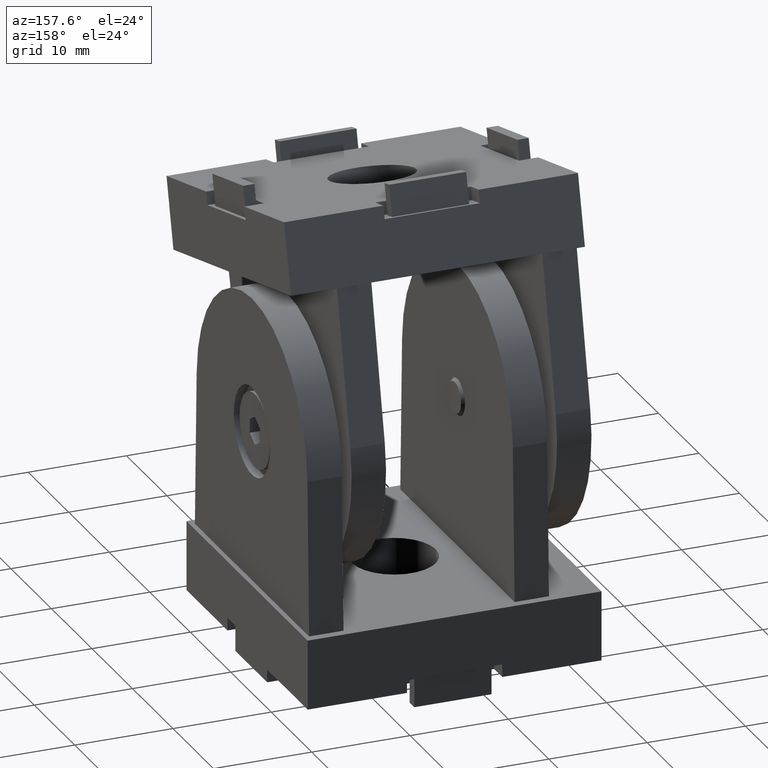
[diagram: clean part render]
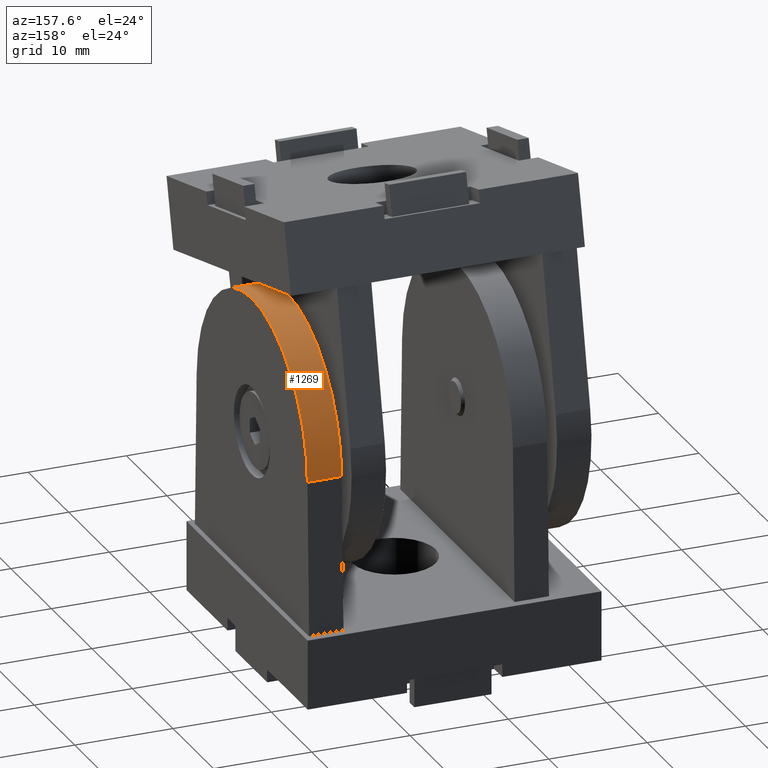
[diagram: same view with one face highlighted and labeled with its STEP entity id]
A machine part, auxiliary view. The second image highlights one B-rep face of the part: STEP entity #1269.
In plain terms, the highlighted cylindrical surface (partial cylindrical patch) has radius 13.675 mm, axis along (-1, -0, 0).
Its self-contained STEP definition (entity closure, byte-faithful):
#165=LINE('',#2010,#305);
#168=LINE('',#2014,#308);
#305=VECTOR('',#1645,3.5);
#308=VECTOR('',#1650,3.5);
#330=CYLINDRICAL_SURFACE('',#1358,13.675);
#412=FACE_OUTER_BOUND('',#499,.T.);
#499=EDGE_LOOP('',(#1062,#1063,#1064,#1065));
#533=CIRCLE('',#1304,13.675);
#534=CIRCLE('',#1306,13.675);
#552=VERTEX_POINT('',#1746);
#553=VERTEX_POINT('',#1747);
#556=VERTEX_POINT('',#1755);
#557=VERTEX_POINT('',#1756);
#667=EDGE_CURVE('',#552,#553,#533,.T.);
#671=EDGE_CURVE('',#556,#557,#534,.T.);
#794=EDGE_CURVE('',#553,#556,#165,.T.);
#797=EDGE_CURVE('',#552,#557,#168,.T.);
#1062=ORIENTED_EDGE('',*,*,#667,.F.);
#1063=ORIENTED_EDGE('',*,*,#797,.T.);
#1064=ORIENTED_EDGE('',*,*,#671,.F.);
#1065=ORIENTED_EDGE('',*,*,#794,.F.);
#1269=ADVANCED_FACE('',(#412),#330,.T.);
#1304=AXIS2_PLACEMENT_3D('',#1748,#1418,#1419);
#1306=AXIS2_PLACEMENT_3D('',#1757,#1425,#1426);
#1358=AXIS2_PLACEMENT_3D('',#2015,#1651,#1652);
#1418=DIRECTION('center_axis',(1.,0.,0.));
#1419=DIRECTION('ref_axis',(0.,0.999624896357522,0.0273873434676064));
#1425=DIRECTION('center_axis',(-1.,0.,0.));
#1426=DIRECTION('ref_axis',(0.,0.999624896357522,0.0273873434676064));
#1645=DIRECTION('',(-1.,0.,0.));
#1650=DIRECTION('',(-1.,0.,0.));
#1651=DIRECTION('center_axis',(-1.,0.,0.));
#1652=DIRECTION('ref_axis',(0.,0.999624896357522,0.0273873434676064));
#1746=CARTESIAN_POINT('',(14.45,13.6698704576891,22.7995219219195));
#1747=CARTESIAN_POINT('',(14.45,-13.6698704576891,22.7995219219195));
#1748=CARTESIAN_POINT('Origin',(14.45,0.,22.425));
#1755=CARTESIAN_POINT('',(10.95,-13.6698704576891,22.7995219219195));
#1756=CARTESIAN_POINT('',(10.95,13.6698704576891,22.7995219219195));
#1757=CARTESIAN_POINT('Origin',(10.95,0.,22.425));
#2010=CARTESIAN_POINT('',(14.45,-13.6698704576891,22.7995219219195));
#2014=CARTESIAN_POINT('',(14.45,13.6698704576891,22.7995219219195));
#2015=CARTESIAN_POINT('Origin',(14.45,0.,22.425));